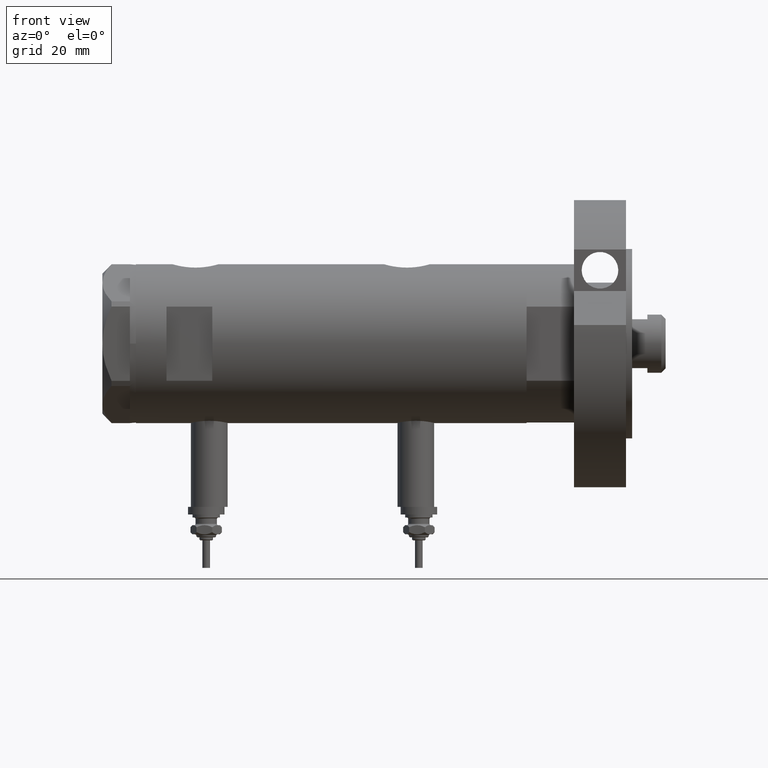
[diagram: clean part render]
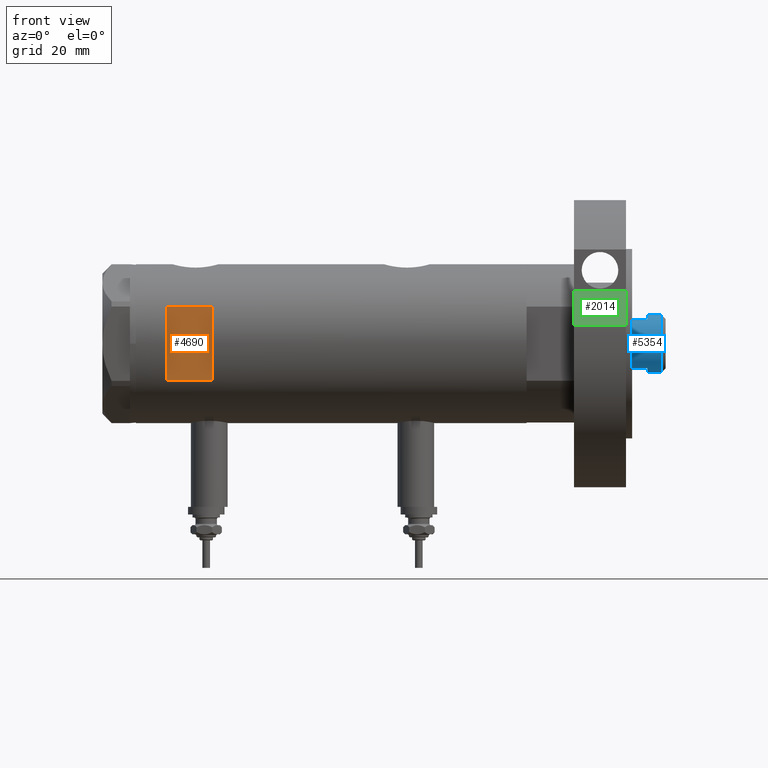
[diagram: same view with three faces highlighted in distinct colors, each labeled with its STEP entity id]
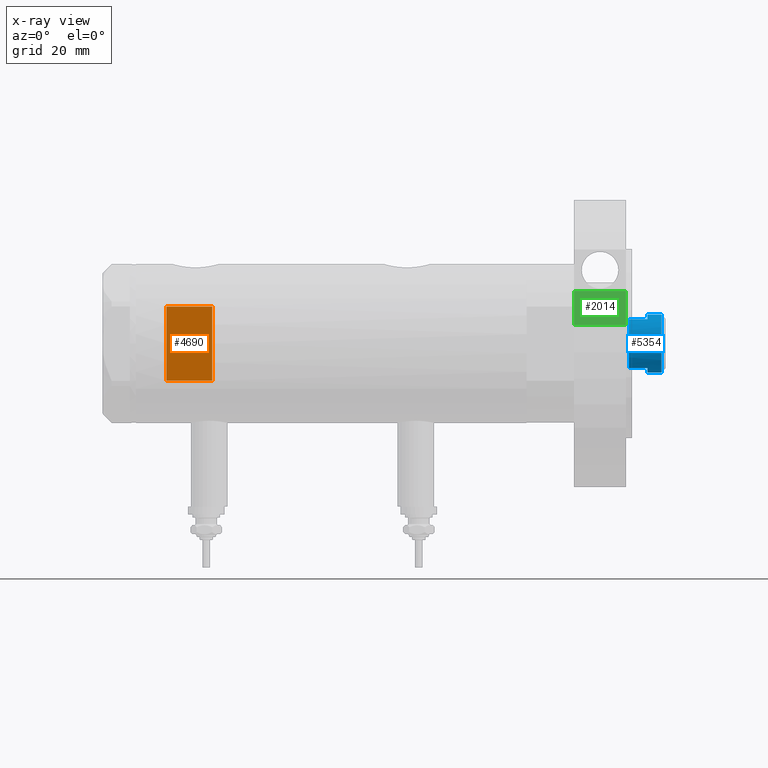
[diagram: x-ray of the same camera — body ghosted, the three highlighted faces saturated]
A machine part, front view with three faces highlighted in distinct colors.
The next image is the same camera in x-ray (body ghosted, the three faces saturated) — at least one of them is partly hidden behind the body in this view.
Their STEP definitions:

[orange] entity #4690 — the highlighted planar face has unit normal (-0, 1, 0).
#67 = LINE ( 'NONE', #5477, #165 ) ;
#74 = ORIENTED_EDGE ( 'NONE', *, *, #5758, .T. ) ;
#165 = VECTOR ( 'NONE', #1834, 1000.000000000000000 ) ;
#421 = PLANE ( 'NONE',  #6464 ) ;
#569 = VECTOR ( 'NONE', #4170, 1000.000000000000000 ) ;
#837 = LINE ( 'NONE', #1329, #5923 ) ;
#1120 = CARTESIAN_POINT ( 'NONE',  ( -26.00000000000000355, -23.00000000000000355, 53.94999999999999574 ) ) ;
#1271 = CARTESIAN_POINT ( 'NONE',  ( 12.12435565298214080, -23.00000000000000355, 38.94999999999999574 ) ) ;
#1329 = CARTESIAN_POINT ( 'NONE',  ( 12.12435565298214080, -23.00000000000000355, -63.95000000000000995 ) ) ;
#1403 = VERTEX_POINT ( 'NONE', #1433 ) ;
#1425 = VERTEX_POINT ( 'NONE', #6405 ) ;
#1433 = CARTESIAN_POINT ( 'NONE',  ( -12.12435565298214080, -23.00000000000000355, 38.94999999999999574 ) ) ;
#1701 = VERTEX_POINT ( 'NONE', #1271 ) ;
#1751 = VERTEX_POINT ( 'NONE', #4285 ) ;
#1801 = CARTESIAN_POINT ( 'NONE',  ( -12.12435565298214080, -23.00000000000000355, -63.95000000000000995 ) ) ;
#1834 = DIRECTION ( 'NONE',  ( 1.000000000000000000, -0.000000000000000000, -0.000000000000000000 ) ) ;
#3280 = EDGE_CURVE ( 'NONE', #1403, #1701, #67, .T. ) ;
#3416 = DIRECTION ( 'NONE',  ( 0.000000000000000000, 1.000000000000000000, 0.000000000000000000 ) ) ;
#3743 = EDGE_LOOP ( 'NONE', ( #74, #4050, #7879, #4195 ) ) ;
#3750 = EDGE_CURVE ( 'NONE', #1425, #1751, #6009, .T. ) ;
#3899 = EDGE_CURVE ( 'NONE', #1701, #1751, #837, .T. ) ;
#4050 = ORIENTED_EDGE ( 'NONE', *, *, #3280, .T. ) ;
#4170 = DIRECTION ( 'NONE',  ( -0.000000000000000000, -0.000000000000000000, -1.000000000000000000 ) ) ;
#4195 = ORIENTED_EDGE ( 'NONE', *, *, #3750, .F. ) ;
#4285 = CARTESIAN_POINT ( 'NONE',  ( 12.12435565298214080, -23.00000000000000355, 53.94999999999999574 ) ) ;
#4690 = ADVANCED_FACE ( 'NONE', ( #4727 ), #421, .F. ) ;
#4727 = FACE_OUTER_BOUND ( 'NONE', #3743, .T. ) ;
#5308 = CARTESIAN_POINT ( 'NONE',  ( -26.00000000000000355, -23.00000000000000355, 53.94999999999999574 ) ) ;
#5365 = DIRECTION ( 'NONE',  ( 1.000000000000000000, -0.000000000000000000, -0.000000000000000000 ) ) ;
#5477 = CARTESIAN_POINT ( 'NONE',  ( -26.00000000000000355, -23.00000000000000355, 38.94999999999999574 ) ) ;
#5758 = EDGE_CURVE ( 'NONE', #1425, #1403, #7894, .T. ) ;
#5923 = VECTOR ( 'NONE', #7399, 1000.000000000000000 ) ;
#6009 = LINE ( 'NONE', #1120, #6317 ) ;
#6317 = VECTOR ( 'NONE', #5365, 1000.000000000000000 ) ;
#6405 = CARTESIAN_POINT ( 'NONE',  ( -12.12435565298214080, -23.00000000000000355, 53.94999999999999574 ) ) ;
#6464 = AXIS2_PLACEMENT_3D ( 'NONE', #5308, #3416, #7802 ) ;
#7399 = DIRECTION ( 'NONE',  ( 0.000000000000000000, 0.000000000000000000, 1.000000000000000000 ) ) ;
#7802 = DIRECTION ( 'NONE',  ( 0.000000000000000000, -0.000000000000000000, 1.000000000000000000 ) ) ;
#7879 = ORIENTED_EDGE ( 'NONE', *, *, #3899, .T. ) ;
#7894 = LINE ( 'NONE', #1801, #569 ) ;

[blue] entity #5354 — the highlighted cylindrical surface (edge-blend (fillet) strip) has radius 9.5 mm, axis along (-1, -0, 0).
#111 = EDGE_CURVE ( 'NONE', #236, #2201, #7744, .T. ) ;
#236 = VERTEX_POINT ( 'NONE', #2533 ) ;
#277 = DIRECTION ( 'NONE',  ( 0.000000000000000000, 0.000000000000000000, 1.000000000000000000 ) ) ;
#352 = CARTESIAN_POINT ( 'NONE',  ( 9.500000000000001776, 1.163414459189985682E-15, 148.1999999999999886 ) ) ;
#466 = CARTESIAN_POINT ( 'NONE',  ( 0.000000000000000000, 0.000000000000000000, 148.1999999999999886 ) ) ;
#555 = AXIS2_PLACEMENT_3D ( 'NONE', #466, #5392, #3577 ) ;
#738 = DIRECTION ( 'NONE',  ( 1.000000000000000000, 0.000000000000000000, 0.000000000000000000 ) ) ;
#898 = EDGE_CURVE ( 'NONE', #6784, #1960, #5141, .T. ) ;
#942 = EDGE_CURVE ( 'NONE', #7682, #1960, #7634, .T. ) ;
#1044 = ORIENTED_EDGE ( 'NONE', *, *, #4315, .T. ) ;
#1426 = CARTESIAN_POINT ( 'NONE',  ( -7.982950582334825462, -5.150000000000019007, 137.5999999999999943 ) ) ;
#1636 = ORIENTED_EDGE ( 'NONE', *, *, #4995, .T. ) ;
#1960 = VERTEX_POINT ( 'NONE', #5213 ) ;
#1963 = AXIS2_PLACEMENT_3D ( 'NONE', #3275, #277, #5811 ) ;
#2044 = VERTEX_POINT ( 'NONE', #3145 ) ;
#2201 = VERTEX_POINT ( 'NONE', #4242 ) ;
#2257 = CARTESIAN_POINT ( 'NONE',  ( -9.500000000000001776, 0.000000000000000000, 143.5999999999999943 ) ) ;
#2507 = AXIS2_PLACEMENT_3D ( 'NONE', #5823, #3406, #5188 ) ;
#2533 = CARTESIAN_POINT ( 'NONE',  ( -9.500000000000001776, 0.000000000000000000, 148.1999999999999886 ) ) ;
#2885 = DIRECTION ( 'NONE',  ( -0.000000000000000000, -0.000000000000000000, -1.000000000000000000 ) ) ;
#3060 = CARTESIAN_POINT ( 'NONE',  ( 9.500000000000001776, 1.163414459189985682E-15, 143.5999999999999943 ) ) ;
#3145 = CARTESIAN_POINT ( 'NONE',  ( 9.500000000000000000, 1.163414459189985485E-15, 143.5999999999999943 ) ) ;
#3275 = CARTESIAN_POINT ( 'NONE',  ( 0.000000000000000000, 0.000000000000000000, 137.5999999999999943 ) ) ;
#3406 = DIRECTION ( 'NONE',  ( -0.000000000000000000, -0.000000000000000000, -1.000000000000000000 ) ) ;
#3566 = LINE ( 'NONE', #6814, #3759 ) ;
#3574 = EDGE_CURVE ( 'NONE', #4840, #2044, #5012, .T. ) ;
#3577 = DIRECTION ( 'NONE',  ( 1.000000000000000000, 0.000000000000000000, 0.000000000000000000 ) ) ;
#3759 = VECTOR ( 'NONE', #6779, 1000.000000000000000 ) ;
#4020 = DIRECTION ( 'NONE',  ( 1.000000000000000000, 0.000000000000000000, 0.000000000000000000 ) ) ;
#4078 = ORIENTED_EDGE ( 'NONE', *, *, #898, .T. ) ;
#4164 = CIRCLE ( 'NONE', #555, 9.500000000000001776 ) ;
#4187 = EDGE_CURVE ( 'NONE', #7682, #2044, #5552, .T. ) ;
#4242 = CARTESIAN_POINT ( 'NONE',  ( -9.500000000000000000, 0.000000000000000000, 143.5999999999999943 ) ) ;
#4315 = EDGE_CURVE ( 'NONE', #7091, #6784, #3566, .T. ) ;
#4330 = CARTESIAN_POINT ( 'NONE',  ( -7.982950582334825462, -5.150000000000003020, 143.5999999999999943 ) ) ;
#4365 = CARTESIAN_POINT ( 'NONE',  ( 0.000000000000000000, 0.000000000000000000, 143.5999999999999943 ) ) ;
#4437 = AXIS2_PLACEMENT_3D ( 'NONE', #4365, #4518, #738 ) ;
#4518 = DIRECTION ( 'NONE',  ( 0.000000000000000000, 0.000000000000000000, 1.000000000000000000 ) ) ;
#4537 = AXIS2_PLACEMENT_3D ( 'NONE', #7789, #7067, #4020 ) ;
#4590 = DIRECTION ( 'NONE',  ( -0.000000000000000000, -0.000000000000000000, -1.000000000000000000 ) ) ;
#4628 = VECTOR ( 'NONE', #2885, 1000.000000000000000 ) ;
#4783 = VECTOR ( 'NONE', #5526, 1000.000000000000000 ) ;
#4840 = VERTEX_POINT ( 'NONE', #352 ) ;
#4995 = EDGE_CURVE ( 'NONE', #4840, #236, #4164, .T. ) ;
#5012 = LINE ( 'NONE', #3060, #4783 ) ;
#5103 = CARTESIAN_POINT ( 'NONE',  ( 7.982950582334832568, -5.149999999999997691, 143.5999999999999943 ) ) ;
#5123 = CARTESIAN_POINT ( 'NONE',  ( 7.982950582334832568, -5.149999999999997691, 143.5999999999999943 ) ) ;
#5141 = CIRCLE ( 'NONE', #1963, 9.500000000000001776 ) ;
#5188 = DIRECTION ( 'NONE',  ( -1.000000000000000000, 0.000000000000000000, 0.000000000000000000 ) ) ;
#5213 = CARTESIAN_POINT ( 'NONE',  ( 7.982950582334834344, -5.150000000000009237, 137.5999999999999943 ) ) ;
#5268 = VECTOR ( 'NONE', #4590, 1000.000000000000000 ) ;
#5354 = ADVANCED_FACE ( 'NONE', ( #7684 ), #5899, .T. ) ;
#5392 = DIRECTION ( 'NONE',  ( 0.000000000000000000, 0.000000000000000000, -1.000000000000000000 ) ) ;
#5526 = DIRECTION ( 'NONE',  ( -0.000000000000000000, -0.000000000000000000, -1.000000000000000000 ) ) ;
#5552 = CIRCLE ( 'NONE', #4537, 9.500000000000000000 ) ;
#5739 = EDGE_LOOP ( 'NONE', ( #6213, #1636, #5915, #6441, #1044, #4078, #6533, #7485 ) ) ;
#5811 = DIRECTION ( 'NONE',  ( 1.000000000000000000, 0.000000000000000000, 0.000000000000000000 ) ) ;
#5823 = CARTESIAN_POINT ( 'NONE',  ( 0.000000000000000000, 0.000000000000000000, 143.5999999999999943 ) ) ;
#5899 = CYLINDRICAL_SURFACE ( 'NONE', #2507, 9.500000000000001776 ) ;
#5915 = ORIENTED_EDGE ( 'NONE', *, *, #111, .T. ) ;
#6059 = EDGE_CURVE ( 'NONE', #2201, #7091, #7120, .T. ) ;
#6213 = ORIENTED_EDGE ( 'NONE', *, *, #3574, .F. ) ;
#6441 = ORIENTED_EDGE ( 'NONE', *, *, #6059, .T. ) ;
#6533 = ORIENTED_EDGE ( 'NONE', *, *, #942, .F. ) ;
#6779 = DIRECTION ( 'NONE',  ( -0.000000000000000000, -0.000000000000000000, -1.000000000000000000 ) ) ;
#6784 = VERTEX_POINT ( 'NONE', #1426 ) ;
#6814 = CARTESIAN_POINT ( 'NONE',  ( -7.982950582334829015, -5.150000000000001243, 143.5999999999999943 ) ) ;
#7067 = DIRECTION ( 'NONE',  ( 0.000000000000000000, 0.000000000000000000, 1.000000000000000000 ) ) ;
#7091 = VERTEX_POINT ( 'NONE', #4330 ) ;
#7120 = CIRCLE ( 'NONE', #4437, 9.500000000000000000 ) ;
#7485 = ORIENTED_EDGE ( 'NONE', *, *, #4187, .T. ) ;
#7634 = LINE ( 'NONE', #5103, #5268 ) ;
#7682 = VERTEX_POINT ( 'NONE', #5123 ) ;
#7684 = FACE_OUTER_BOUND ( 'NONE', #5739, .T. ) ;
#7744 = LINE ( 'NONE', #2257, #4628 ) ;
#7789 = CARTESIAN_POINT ( 'NONE',  ( 0.000000000000000000, 0.000000000000000000, 143.5999999999999943 ) ) ;

[green] entity #2014 — the highlighted planar face has unit normal (-0, 0.7071, -0.7071).
#42 = VERTEX_POINT ( 'NONE', #913 ) ;
#78 = CARTESIAN_POINT ( 'NONE',  ( 17.22217135699461110, 35.47361286101150313, 0.000000000000000000 ) ) ;
#913 = CARTESIAN_POINT ( 'NONE',  ( 6.092310621118299352, 46.60347359688769586, 17.00000000000000000 ) ) ;
#1204 = VERTEX_POINT ( 'NONE', #5703 ) ;
#1437 = DIRECTION ( 'NONE',  ( -0.7071067811865440200, -0.7071067811865511255, 0.000000000000000000 ) ) ;
#1516 = EDGE_LOOP ( 'NONE', ( #7050, #2364, #4814, #3892 ) ) ;
#1598 = EDGE_CURVE ( 'NONE', #1788, #6219, #4689, .T. ) ;
#1788 = VERTEX_POINT ( 'NONE', #2082 ) ;
#1865 = CARTESIAN_POINT ( 'NONE',  ( 17.22217135699461110, 35.47361286101150313, 0.000000000000000000 ) ) ;
#1978 = FACE_OUTER_BOUND ( 'NONE', #1516, .T. ) ;
#2014 = ADVANCED_FACE ( 'NONE', ( #1978 ), #4458, .F. ) ;
#2082 = CARTESIAN_POINT ( 'NONE',  ( 6.092310621118299352, 46.60347359688769586, 0.000000000000000000 ) ) ;
#2364 = ORIENTED_EDGE ( 'NONE', *, *, #3329, .F. ) ;
#2500 = DIRECTION ( 'NONE',  ( -0.000000000000000000, -0.000000000000000000, 1.000000000000000000 ) ) ;
#3092 = LINE ( 'NONE', #5555, #7366 ) ;
#3329 = EDGE_CURVE ( 'NONE', #6219, #1204, #4264, .T. ) ;
#3536 = DIRECTION ( 'NONE',  ( 0.7071067811865511255, -0.7071067811865440200, -0.000000000000000000 ) ) ;
#3747 = DIRECTION ( 'NONE',  ( -0.000000000000000000, -0.000000000000000000, 1.000000000000000000 ) ) ;
#3880 = VECTOR ( 'NONE', #7143, 999.9999999999998863 ) ;
#3892 = ORIENTED_EDGE ( 'NONE', *, *, #4349, .T. ) ;
#4207 = EDGE_CURVE ( 'NONE', #42, #1204, #5294, .T. ) ;
#4264 = LINE ( 'NONE', #1865, #4280 ) ;
#4280 = VECTOR ( 'NONE', #2500, 1000.000000000000000 ) ;
#4349 = EDGE_CURVE ( 'NONE', #1788, #42, #3092, .T. ) ;
#4458 = PLANE ( 'NONE',  #4547 ) ;
#4547 = AXIS2_PLACEMENT_3D ( 'NONE', #78, #1437, #6325 ) ;
#4689 = LINE ( 'NONE', #6528, #7075 ) ;
#4711 = CARTESIAN_POINT ( 'NONE',  ( 26.34789210900296652, 26.34789210900323297, 17.00000000000000000 ) ) ;
#4814 = ORIENTED_EDGE ( 'NONE', *, *, #1598, .F. ) ;
#5294 = LINE ( 'NONE', #4711, #3880 ) ;
#5472 = CARTESIAN_POINT ( 'NONE',  ( 17.22217135699460755, 35.47361286101150313, 0.000000000000000000 ) ) ;
#5555 = CARTESIAN_POINT ( 'NONE',  ( 6.092310621118299352, 46.60347359688769586, 0.000000000000000000 ) ) ;
#5703 = CARTESIAN_POINT ( 'NONE',  ( 17.22217135699461110, 35.47361286101150313, 17.00000000000000000 ) ) ;
#6219 = VERTEX_POINT ( 'NONE', #5472 ) ;
#6325 = DIRECTION ( 'NONE',  ( 0.7071067811865511255, -0.7071067811865440200, 0.000000000000000000 ) ) ;
#6528 = CARTESIAN_POINT ( 'NONE',  ( 17.22217135699461110, 35.47361286101150313, 0.000000000000000000 ) ) ;
#7050 = ORIENTED_EDGE ( 'NONE', *, *, #4207, .T. ) ;
#7075 = VECTOR ( 'NONE', #3536, 999.9999999999998863 ) ;
#7143 = DIRECTION ( 'NONE',  ( 0.7071067811865511255, -0.7071067811865440200, 0.000000000000000000 ) ) ;
#7366 = VECTOR ( 'NONE', #3747, 1000.000000000000000 ) ;